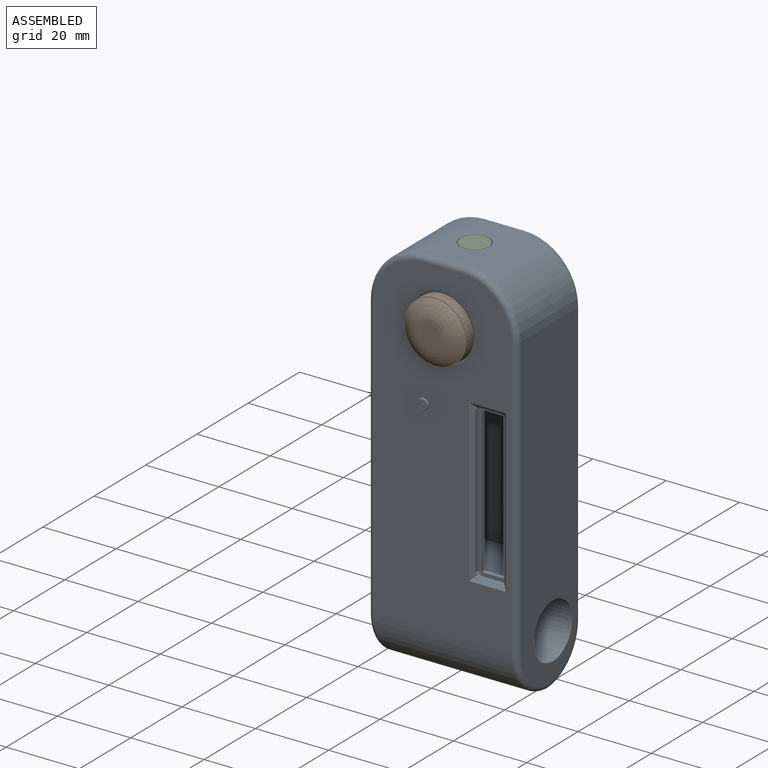
[diagram: assembled view]
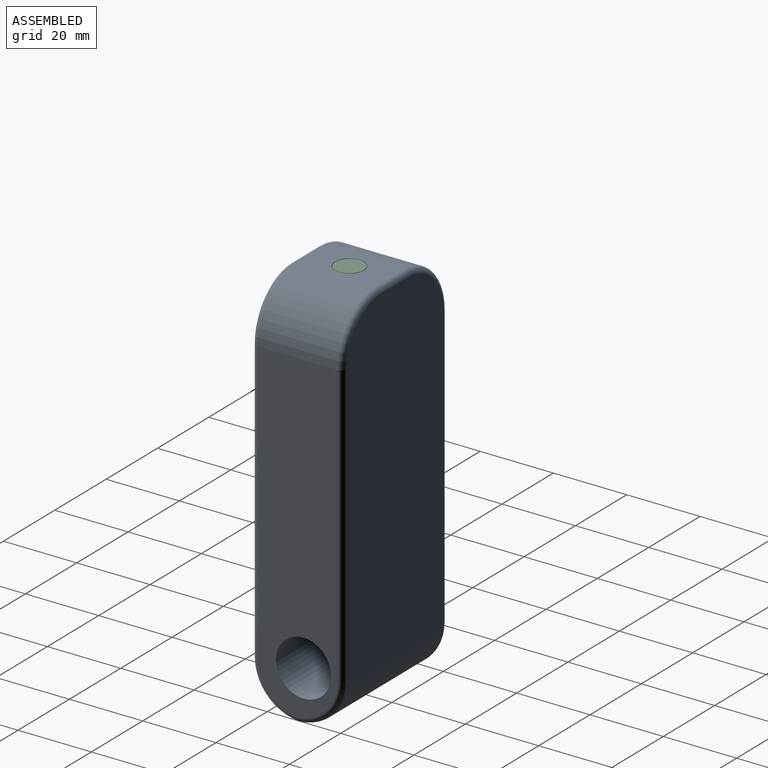
[diagram: assembled view, second angle]
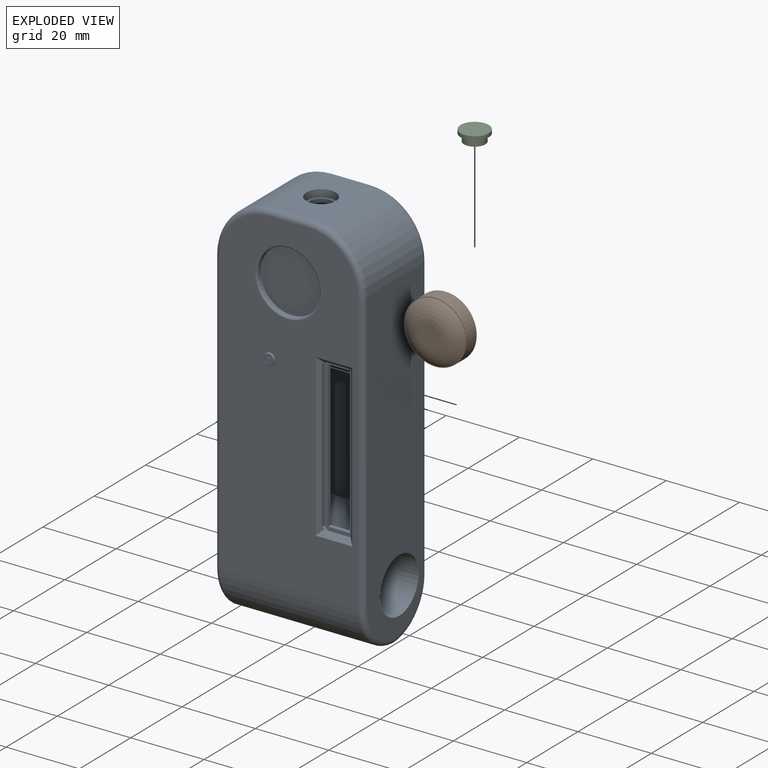
[diagram: exploded view]
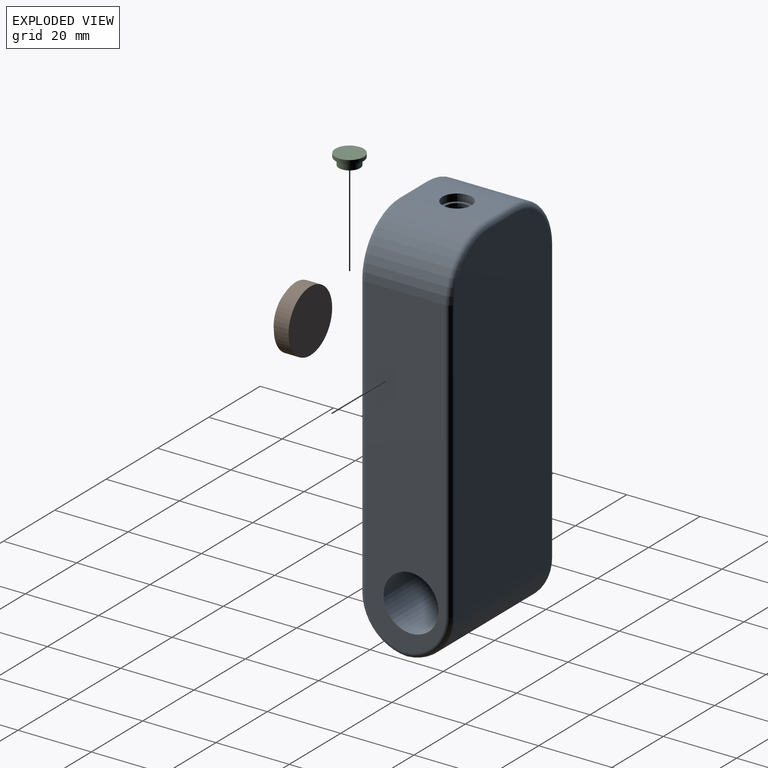
[diagram: exploded view, second angle]
ASSEMBLY  parts=3 mates=4
PART A: 62 faces, bbox 43.1x26.9x107.3 mm
  f0: cylinder r=3.25mm len=6.5mm, axis (0,0,1), area 20.4mm2, adj f12,f34
  f1: plane 6x1mm, normal (0,0,-1), area 6mm2, adj f2,f4,f5,f17
  f2: plane 40x1mm, normal (1,0,0), area 40mm2, adj f1,f3,f5,f17
  f3: plane 6x1mm, normal (0,0,1), area 6mm2, adj f2,f4,f5,f17
  f4: plane 40x1mm, normal (-1,0,0), area 40mm2, adj f1,f3,f5,f17
  f5: plane 74.94x34.6mm, normal (0,1,0), area 2291.1mm2, adj f1,f2,f3,f4,f7,f8,f9,f10
  f6: plane 74.94x34.6mm, normal (0,-1,0), area 2531.1mm2, adj f7,f8,f9,f10,f11,f12
  f7: cylinder r=12mm len=19mm, axis (0,-1,0), area 358.1mm2, adj f5,f6,f8,f12
  f8: plane 62.94x19mm, normal (-1,0,0), area 1195.8mm2, adj f5,f6,f7,f9
  f9: plane 34.6x19mm, normal (0,0,1), area 657.4mm2, adj f5,f6,f8,f10
  f10: plane 62.94x19mm, normal (1,0,0), area 1195.8mm2, adj f5,f6,f9,f11
  f11: cylinder r=12mm len=19mm, axis (0,-1,0), area 358.1mm2, adj f5,f6,f10,f12
  f12: plane 19x10.6mm, normal (0,0,-1), area 168.2mm2, adj f0,f5,f6,f7,f11
  f13: plane 40x1mm, normal (1,0,0), area 40mm2, adj f17,f53,f57,f59
  f14: plane 6x1mm, normal (0,0,1), area 6mm2, adj f17,f55,f56,f57
  f15: plane 40x1mm, normal (-1,0,0), area 40mm2, adj f17,f54,f56,f58
  f16: plane 6x1mm, normal (0,0,-1), area 6mm2, adj f17,f52,f58,f59
  f17: plane 42x8mm, normal (0,-1,0), area 94mm2, adj f1,f2,f3,f4,f13,f14,f15,f16
  f18: plane 90.5x37.6mm, normal (0,1,0), area 3324.6mm2, adj f19,f41,f43,f45,f47,f49
  f19: cylinder r=13mm len=37.6mm, axis (1,0,0), area 745.2mm2, adj f18,f25,f39,f51
  f20: cylinder r=7.5mm len=40.6mm, axis (1,0,0), area 1913.2mm2, adj f24,f26
  f21: cylinder r=15mm len=21.8mm, axis (0,-1,0), area 513.7mm2, adj f22,f26,f46,f47
  f22: plane 21.8x10.6mm, normal (0,0,1), area 180.8mm2, adj f21,f23,f35,f44,f45
  f23: cylinder r=15mm len=21.8mm, axis (0,1,0), area 513.7mm2, adj f22,f24,f42,f43
  f24: plane 88.48x21.8mm, normal (1,0,0), area 1695.8mm2, adj f20,f23,f38,f39,f40,f41
  f25: cylinder r=13mm len=37.6mm, axis (-1,0,0), area 745.2mm2, adj f19,f27,f38,f50
  f26: plane 88.48x21.8mm, normal (-1,0,0), area 1695.8mm2, adj f20,f21,f48,f49,f50,f51
  f27: plane 90.5x37.6mm, normal (0,-1,0), area 2621.6mm2, adj f25,f29,f40,f42,f44,f46,f48,f52
  f28: cylinder r=1.25mm len=2.5mm, axis (0,1,0), area 0.8mm2, adj f30,f31
  f29: cylinder r=1.5mm len=3mm, axis (0,1,0), area 2.8mm2, adj f27,f60
  f30: plane 2.6x2.6mm, normal (0,-1,0), area 0.4mm2, adj f28,f60
  f31: plane 2.5x2.5mm, normal (0,-1,0), area 4.5mm2, adj f28,f32
  f32: cylinder r=0.38mm len=0.76mm, axis (0,1,0), area 0.5mm2, adj f31,f33
  f33: plane 0.76x0.76mm, normal (0,-1,0), area 0.4mm2, adj f32
  f34: plane 8x8mm, normal (0,0,1), area 17.1mm2, adj f0,f35
  f35: cylinder r=4mm len=8mm, axis (0,0,1), area 50.3mm2, adj f22,f34
  f36: cylinder r=8.53mm len=17.05mm, axis (0,-1,0), area 53.6mm2, adj f37,f61
  f37: plane 17.05x17.05mm, normal (0,-1,0), area 228.3mm2, adj f36
  f38: torus R=11.5mm, axis (1,0,0), area 44.7mm2, adj f24,f25,f39,f40
  f39: torus R=11.5mm, axis (1,0,0), area 44.7mm2, adj f19,f24,f38,f41
  f40: cylinder r=1.5mm len=77mm, axis (0,0,-1), area 181.4mm2, adj f24,f27,f38,f42
  f41: cylinder r=1.5mm len=77mm, axis (0,0,1), area 181.4mm2, adj f18,f24,f39,f43
  f42: torus R=13.5mm, axis (0,-1,0), area 53.5mm2, adj f23,f27,f40,f44
  f43: torus R=13.5mm, axis (0,-1,0), area 53.5mm2, adj f18,f23,f41,f45
  f44: cylinder r=1.5mm len=10.6mm, axis (1,0,0), area 25mm2, adj f22,f27,f42,f46
  f45: cylinder r=1.5mm len=10.6mm, axis (-1,0,0), area 25mm2, adj f18,f22,f43,f47
  f46: torus R=13.5mm, axis (0,-1,0), area 53.5mm2, adj f21,f27,f44,f48
  f47: torus R=13.5mm, axis (0,-1,0), area 53.5mm2, adj f18,f21,f45,f49
  f48: cylinder r=1.5mm len=77mm, axis (0,0,1), area 181.4mm2, adj f26,f27,f46,f50
  f49: cylinder r=1.5mm len=77mm, axis (0,0,-1), area 181.4mm2, adj f18,f26,f47,f51
  f50: torus R=11.5mm, axis (1,0,0), area 44.7mm2, adj f25,f26,f48,f51
  f51: torus R=11.5mm, axis (1,0,0), area 44.7mm2, adj f19,f26,f49,f50
  f52: plane 10x1.5mm, normal (0,-0.71,-0.71), area 13.4mm2, adj f16,f27,f53,f54,f58,f59
  f53: plane 44x1.5mm, normal (0.71,-0.71,0), area 61.5mm2, adj f13,f27,f52,f55,f57,f59
  f54: plane 44x1.5mm, normal (-0.71,-0.71,0), area 61.5mm2, adj f15,f27,f52,f55,f56,f58
  f55: plane 10x1.5mm, normal (0,-0.71,0.71), area 13.4mm2, adj f14,f27,f53,f54,f56,f57
  f56: plane 1x1mm, normal (-0.71,0,0.71), area 1.1mm2, adj f14,f15,f17,f54,f55
  f57: plane 1x1mm, normal (0.71,0,0.71), area 1.1mm2, adj f13,f14,f17,f53,f55
  f58: plane 1x1mm, normal (-0.71,0,-0.71), area 1.1mm2, adj f15,f16,f17,f52,f54
  f59: plane 1x1mm, normal (0.71,0,-0.71), area 1.1mm2, adj f13,f16,f17,f52,f53
  f60: torus R=1.3mm, axis (0,-1,0), area 2.8mm2, adj f29,f30
  f61: torus R=9.03mm, axis (0,-1,0), area 43mm2, adj f27,f36
PART B: 5 faces, bbox 17x6.3x17 mm
  f0: plane 6.23x6.23mm, normal (0,-1,0), area 30.4mm2, adj f1
  f1: torus R=3.11mm, axis (0,1,0), area 215.4mm2, adj f0,f4
  f2: cylinder r=8.5mm len=17mm, axis (0,-1,0), area 213.6mm2, adj f3,f4
  f3: plane 17x17mm, normal (0,1,0), area 227mm2, adj f2
  f4: plane 17x17mm, normal (0,-1,0), area 10.6mm2, adj f1,f2
PART C: 5 faces, bbox 7.7x3x7.7 mm
  f0: cylinder r=3.85mm len=7.7mm, axis (0,1,0), area 24.2mm2, adj f1,f2
  f1: plane 7.7x7.7mm, normal (0,-1,0), area 20.1mm2, adj f0,f3
  f2: plane 7.7x7.7mm, normal (0,1,0), area 46.6mm2, adj f0
  f3: cylinder r=2.9mm len=5.8mm, axis (0,1,0), area 36.4mm2, adj f1,f4
  f4: plane 5.8x5.8mm, normal (0,-1,0), area 26.4mm2, adj f3
PLACE A t=(41.77,83.6,-107.96)mm
PLACE B t=(43.65,56.3,-75.85)mm
PLACE C rot(axis=(1,0,0),90deg) t=(95.08,100.26,-59.27)mm
MATE planar C.f0 <-> A.f0  axis (0,0,1) through (43.96,71.2,-59.27)mm
MATE planar B.f2 <-> A.f36  axis (0,1,0) through (43.65,60.3,-75.85)mm
MATE planar B.f2 <-> A.f36  axis (0,1,0) through (43.65,60.3,-75.85)mm
MATE planar C.f0 <-> A.f0  axis (0,0,1) through (43.96,71.2,-59.27)mm
